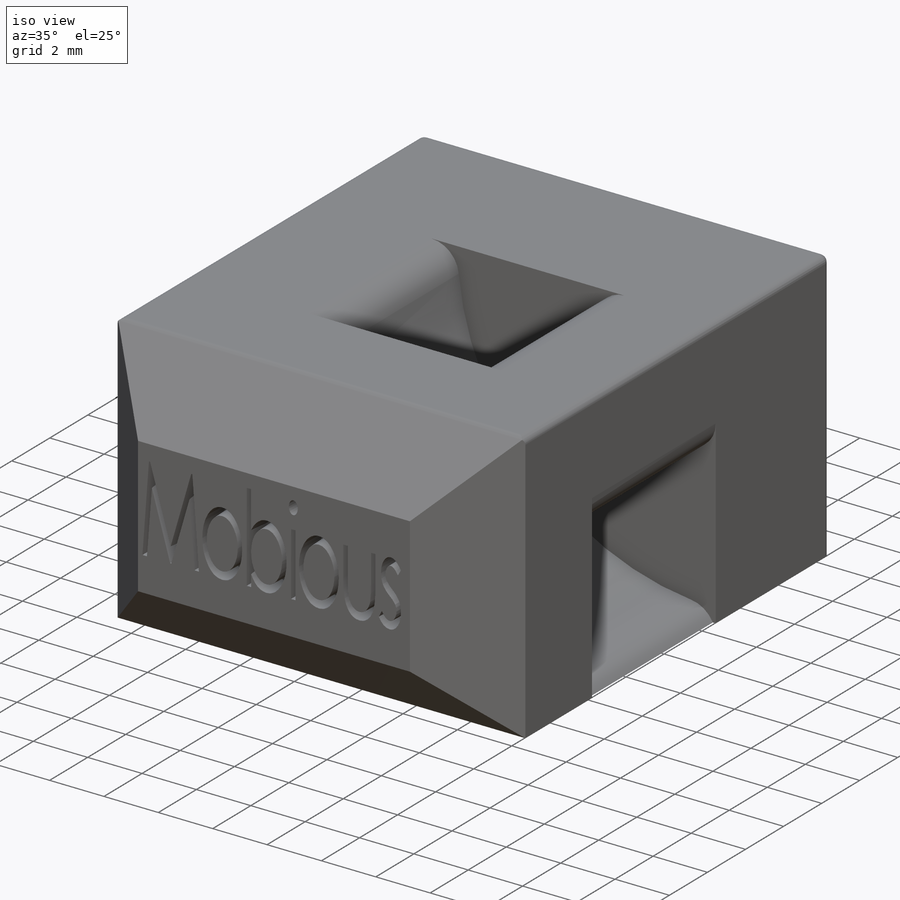
[diagram: iso view]
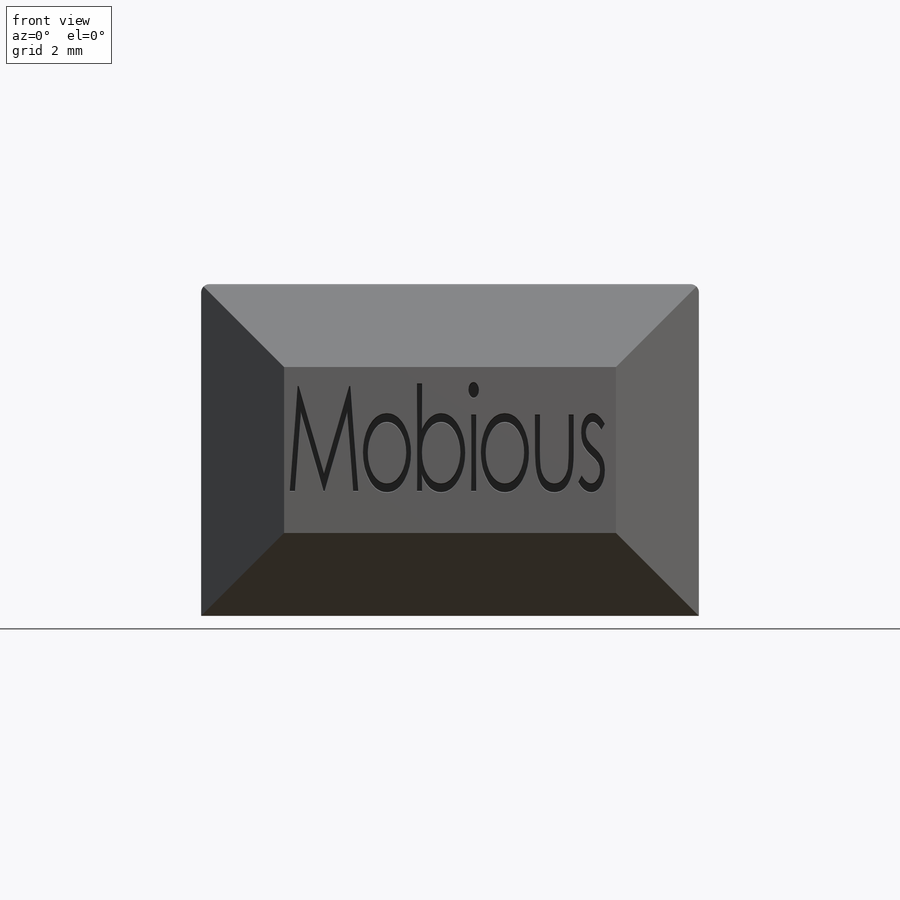
[diagram: front view]
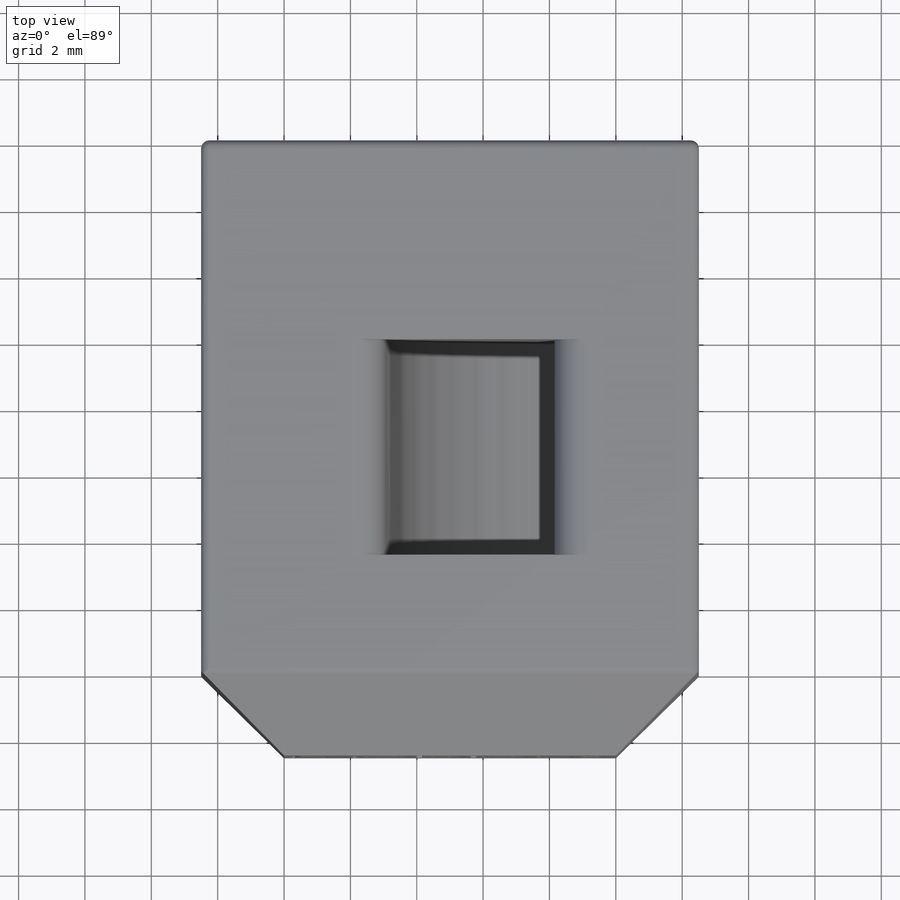
[diagram: top view]
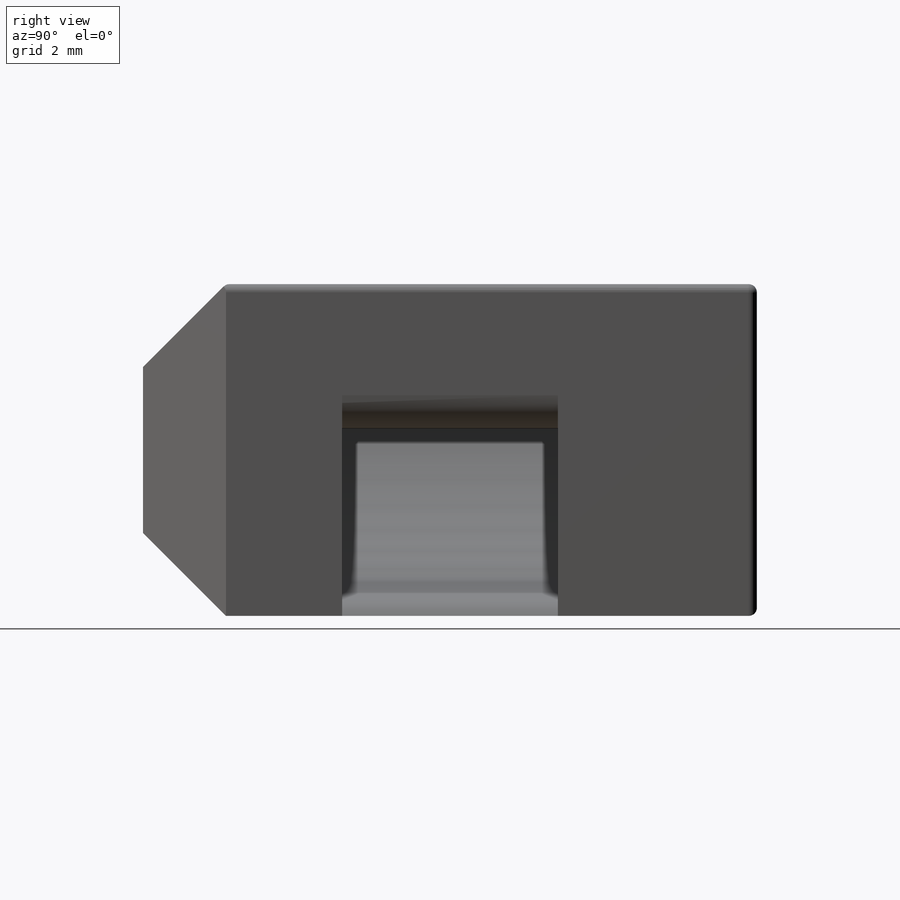
[diagram: right view]
SOLIDWORKS PART (.sldprt)
format: sldprt  version: not decoded by parser v0  size: 615,936 bytes
history: native  units: mm
features: sketch x5, cut_extrude x3, fillet x3, material x1, extrude x1, cut_revolve x1, chamfer x1, mirror x1 (+13 scaffold rows collapsed)
feature tree (29):
  scaffold x13  (default folders/planes/origin — collapsed)
  material  "Material <not specified>"
  sketch  "Sketch1"  dims[D1=10.0mm D2=15.0mm]
  extrude  "Boss-Extrude1"  Depth=18.5mm
  sketch  "Sketch2"  dims[D1=5.0mm D2=6.5mm D3=~4.497349mm]
  cut_revolve  "Cut-Revolve1"  Angle=90deg
  chamfer  "Chamfer1"  Distance=2.5mm Angle=45deg
  sketch  "Sketch3"  dims[D1=5.0mm D2=5.36mm]
  cut_extrude  "Cut-Extrude1"  Depth=2.35mm
  sketch  "Sketch4"  dims[D1=3.0mm]
  cut_extrude  "Cut-Extrude2"  Depth=3.25mm
  sketch  "Sketch5"
  cut_extrude  "Cut-Extrude3"  Depth=1mm
  fillet  "Fillet1"  Radius=1mm
  fillet  "Fillet2"  Radius=0.25mm
  fillet  "Fillet3"  Radius=0.25mm
  mirror  "Mirror1"
decode coverage: 13 of 15 modeling features carry decoded parameters
note: ~ marks probable driven/reference dimensions
note: suppression state not decoded; provenance and decode notes live in map.json
